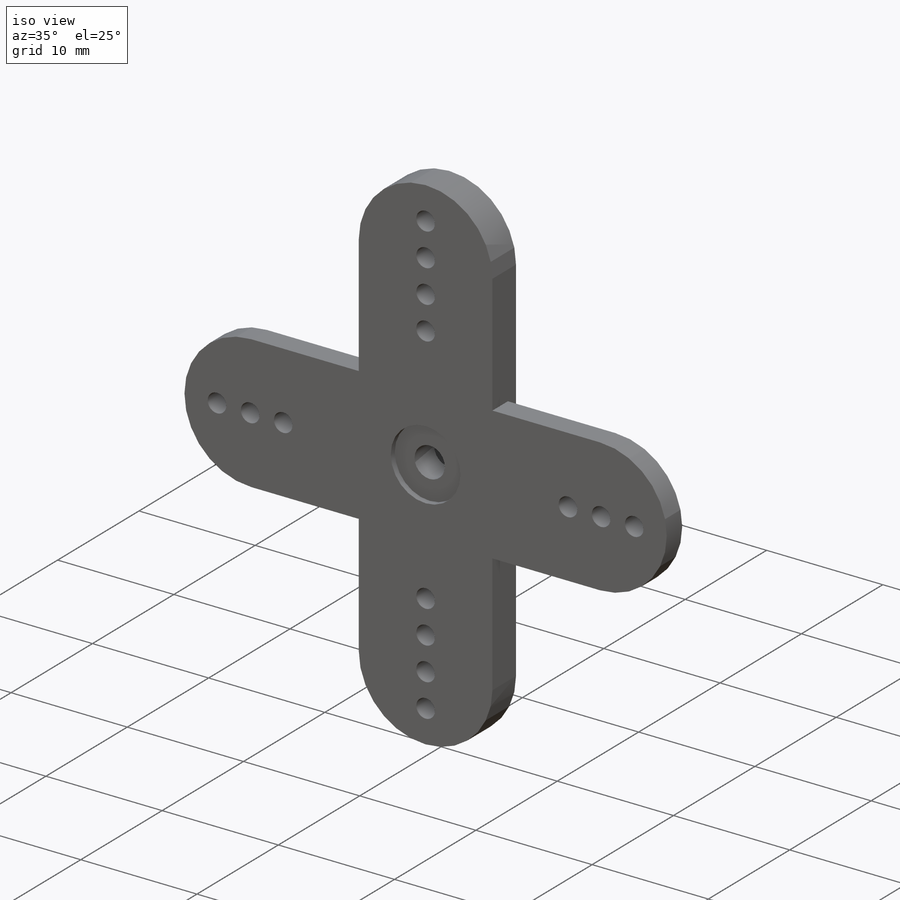
[diagram: iso view]
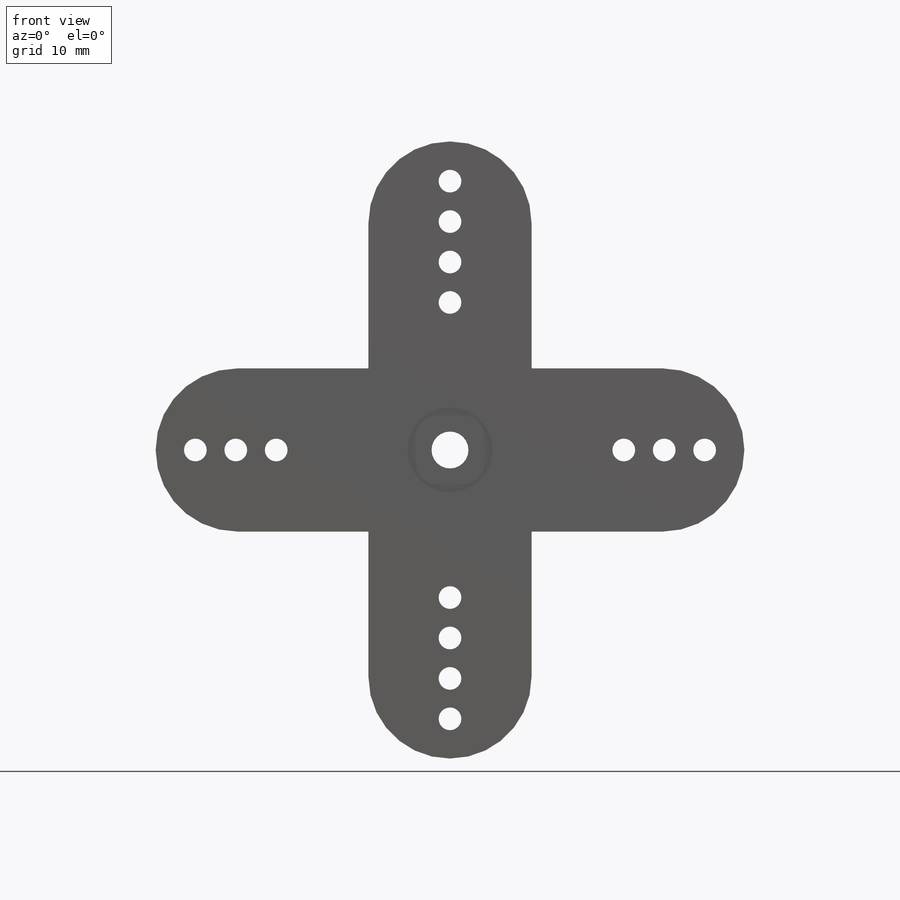
[diagram: front view]
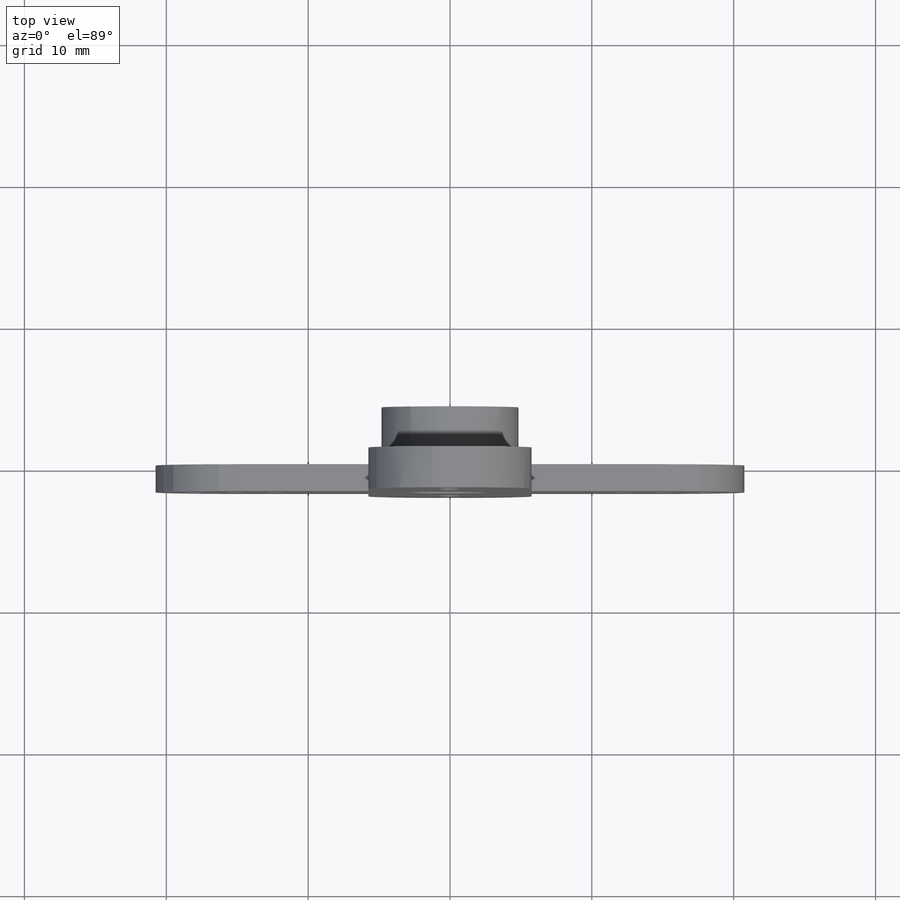
[diagram: top view]
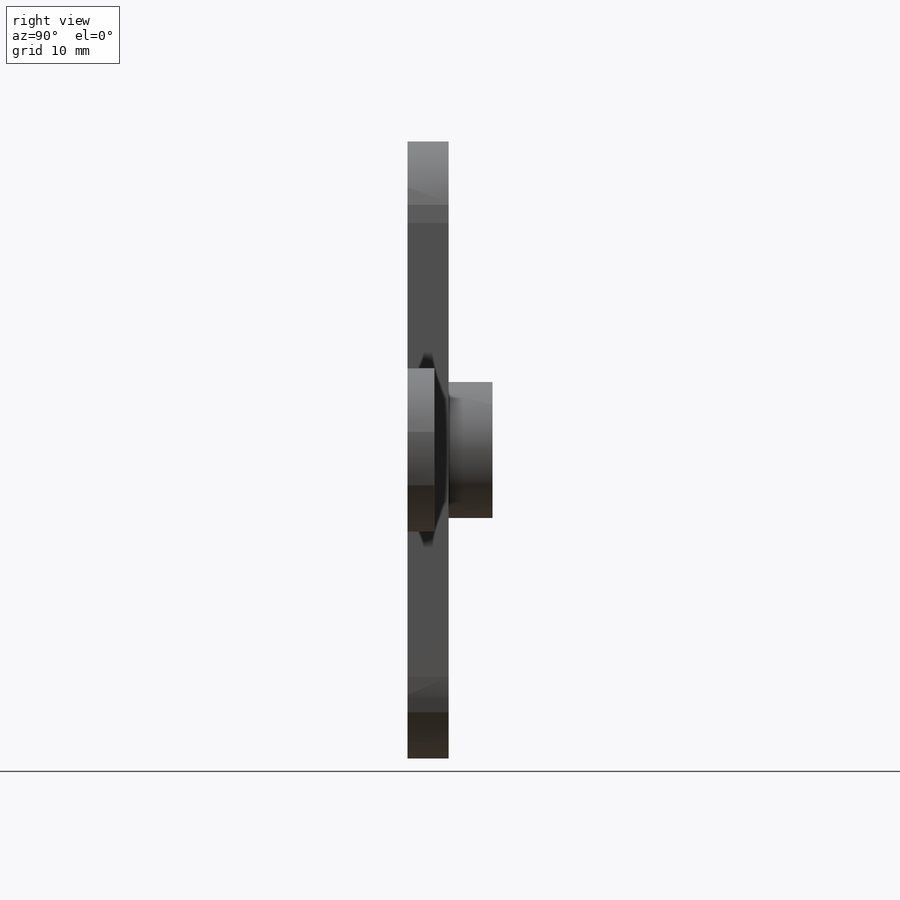
[diagram: right view]
SOLIDWORKS PART (.sldprt)
format: sldprt  version: not decoded by parser v0  size: 309,248 bytes
history: native  units: mm
features: sketch x6, extrude x3, cut_extrude x3, material x1 (+12 scaffold rows collapsed)
feature tree (25):
  scaffold x12  (default folders/planes/origin — collapsed)
  material  "Material <not specified>"
  sketch  "Sketch1"  dims[D1=11.5mm D2=11.5mm D3=11.5mm D4=11.5mm D5=32.0mm D6=30.0mm D7=16.0mm D8=15.0mm]
  extrude  "Boss-Extrude1"  Depth=1.9mm
  sketch  "Sketch2"  dims[D1=43.5mm]
  extrude  "Boss-Extrude2"  Depth=1mm
  sketch  "Sketch3"  dims[D1=~3.132094mm]
  cut_extrude  "Cut-Extrude1"  Depth=0.5mm
  sketch  "Sketch4"  dims[D1=~2.687413mm]
  extrude  "Boss-Extrude3"  Depth=3.1mm
  sketch  "Sketch5"  dims[D1=~1.149367mm]
  cut_extrude  "Cut-Extrude2"  [1 undecoded]
  sketch  "Sketch6"  dims[c1.D1=1.6mm c1.D3=1.6mm c1.D5=1.6mm c2.D1=1.6mm c2.D2=2.8mm c2.D3=2.8mm c2.D4=2.8mm c2.D5=2.8mm c2.D6=2.8mm c2.D7=2.8mm c2.D8=2.8mm c2.D9=2.8mm c2.D10=2.8mm c2.D11=2.8mm c2.D12=2.8mm c2.D13=2.8mm c2.D14=2.8mm c2.D15=2.8mm c2.D16=23.6mm c2.D17=32.3mm c3.D2=20.1mm c3.D3=23.6mm c3.D4=2.85mm c3.D5=2.85mm c3.D6=2.85mm c3.D7=2.85mm c3.D8=2.85mm c3.D9=2.85mm c3.D10=2.85mm c3.D11=2.85mm c3.D12=2.85mm c3.D13=2.85mm c3.D14=2.8mm c3.D15=2.8mm c3.D16=2.8mm c4.D2=2.8mm c4.D3=20.8mm c4.D17=43.5mm]
  cut_extrude  "Cut-Extrude4"  [1 undecoded]
decode coverage: 10 of 12 modeling features carry decoded parameters
note: ~ marks probable driven/reference dimensions
note: 2 parameter values undecoded
note: suppression state not decoded; provenance and decode notes live in map.json
